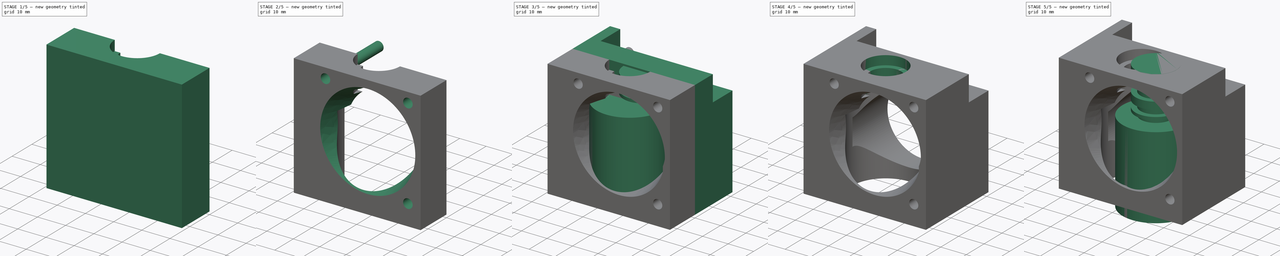
[diagram: build sequence overview — one tinted view per stage of 5, left to right]
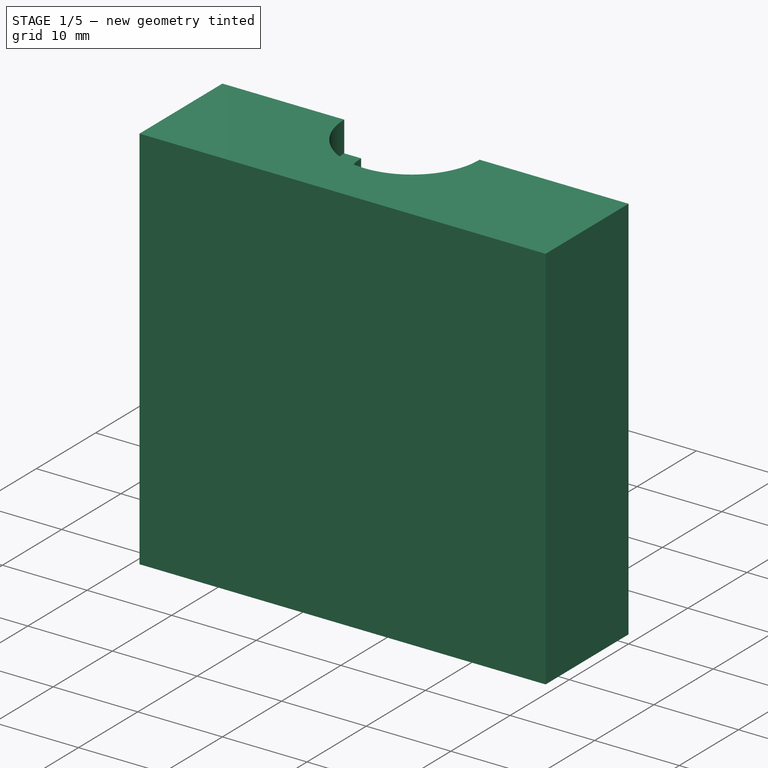
[diagram: stage 1 of 5 — iso view after this stage's code; geometry added in this stage tinted green]
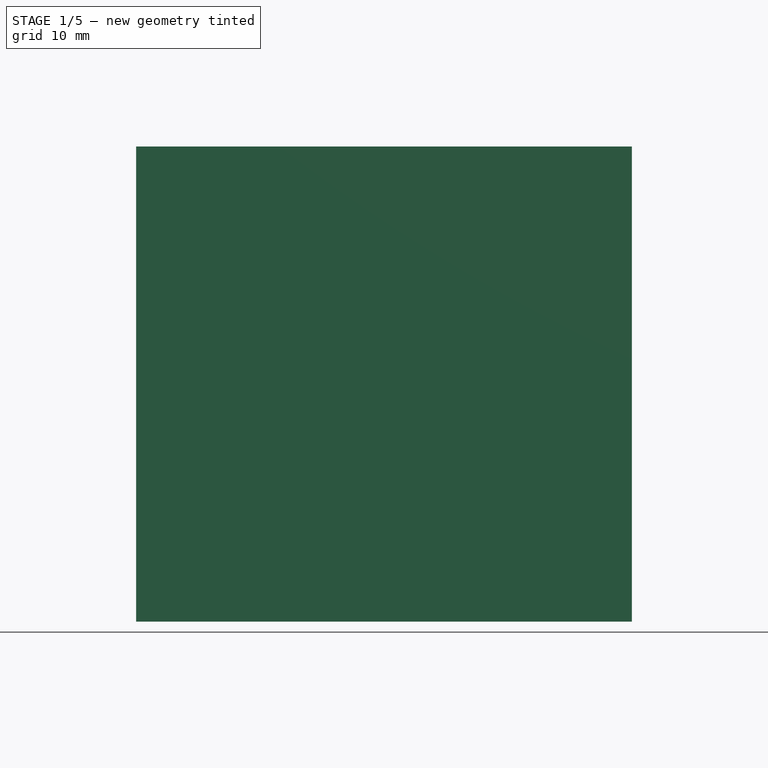
[diagram: stage 1 of 5 — front view after this stage's code; geometry added in this stage tinted green]
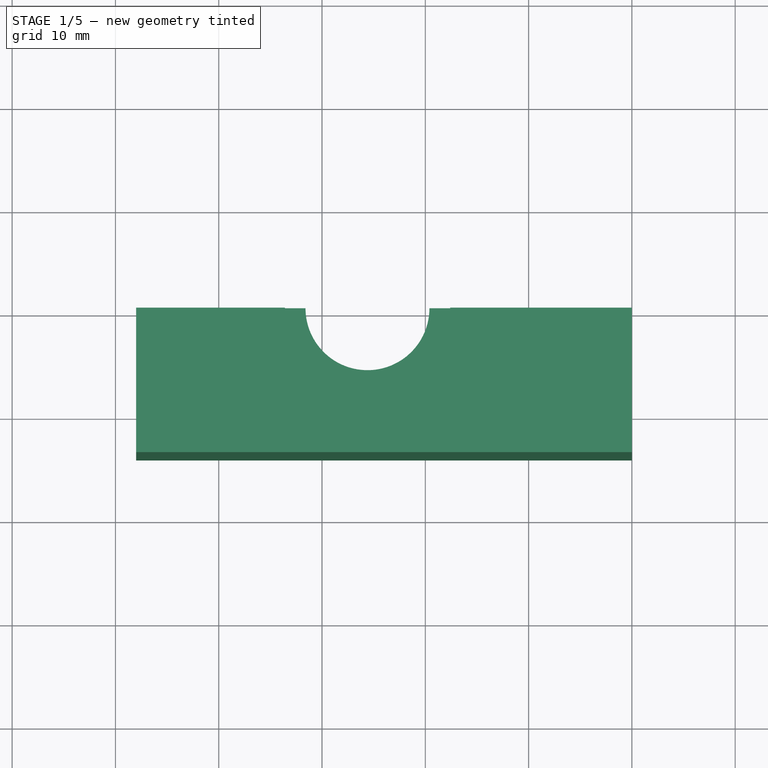
[diagram: stage 1 of 5 — top view after this stage's code; geometry added in this stage tinted green]
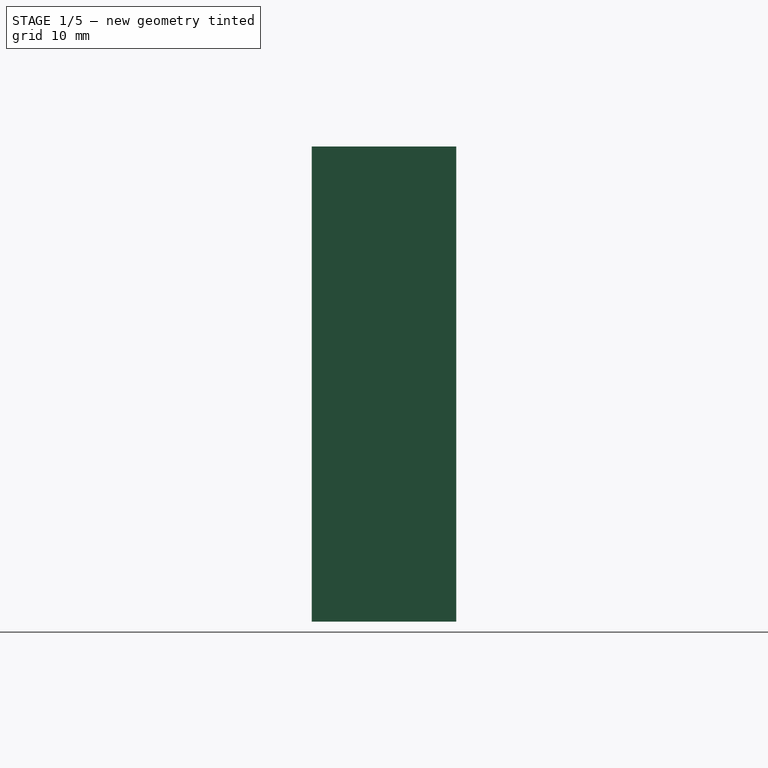
[diagram: stage 1 of 5 — right view after this stage's code; geometry added in this stage tinted green]
FCSTD DOCUMENT  (FreeCAD 0.15R4630 (Git))
Label: ChineseHotEndMount
License: CC-BY 3.0
LicenseURL: http://creativecommons.org/licenses/by/3.0/
objects: Part::Cylinder×22, Part::Cut×8, Part::MultiFuse×4, Part::Box×3, Sketcher::SketchObject×2, App::DocumentObjectGroup×1, Part::Loft×1
note: 40 computed .brp shape members not serialized (recipe doc carries the construction recipe); baked Part::Feature solids carry a one-line shape summary decoded from their .brp

FEATURE [Part::Box] Box002  label="Cube001"
  Height = 46
  Length = 48
  Placement = pos=(-28,-14,-4) rot=(0,0,1;0rad)
  Width = 14
FEATURE [Part::Cylinder] Cylinder023
  Angle = 360
  Height = 32
  Radius = 13
FEATURE [Part::Cylinder] Cylinder024  label="CylinderThroat003"
  Angle = 360
  Height = 18
  Placement = pos=(0,0,32) rot=(0,0,1;0rad)
  Radius = 6
FEATURE [Part::Cylinder] Cylinder025  label="Cylinder036"
  Angle = 360
  Height = 3.63
  Placement = pos=(0,0,46.4) rot=(0,0,1;0rad)
  Radius = 8
FEATURE [Part::Cylinder] Cylinder026  label="Cylinder037"
  Angle = 360
  Height = 3.7
  Placement = pos=(0,0,37.6) rot=(0,0,1;0rad)
  Radius = 8
FEATURE [Part::Cylinder] Cylinder027  label="Cylinder038"
  Angle = 360
  Height = 1.2
  Placement = pos=(0,0,33.8) rot=(0,0,1;0rad)
  Radius = 8
FEATURE [Part::MultiFuse] Fusion004
  Placement = pos=(-5.6,0,-8) rot=(0,0,1;0rad)
  Shapes = -> [Cylinder023,Cylinder024,Cylinder025,Cylinder026,Cylinder027]
FEATURE [Part::Cut] Cut006
  Base = -> Box002
  Tool = -> Fusion004
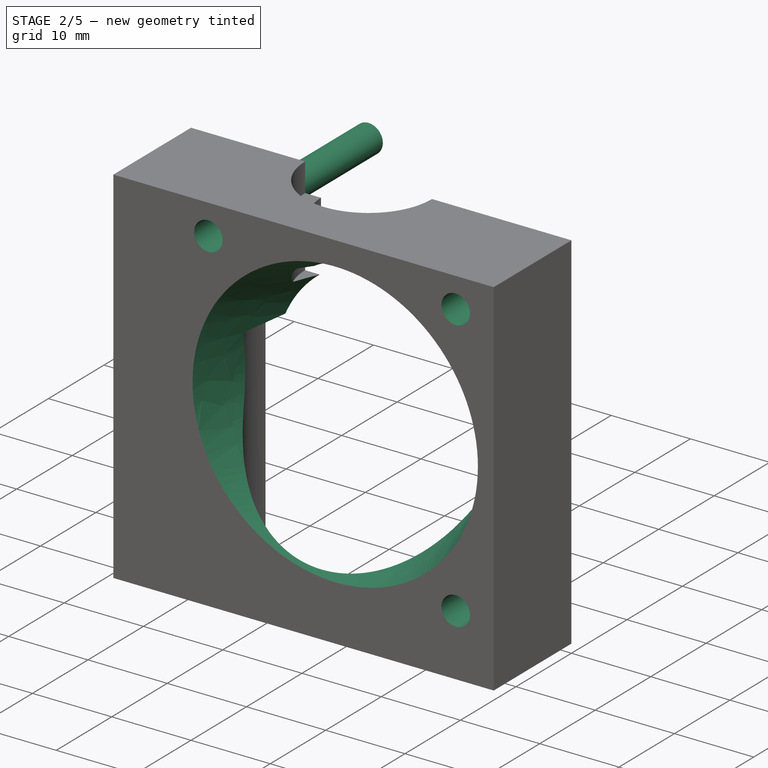
[diagram: stage 2 of 5 — iso view after this stage's code; geometry added in this stage tinted green]
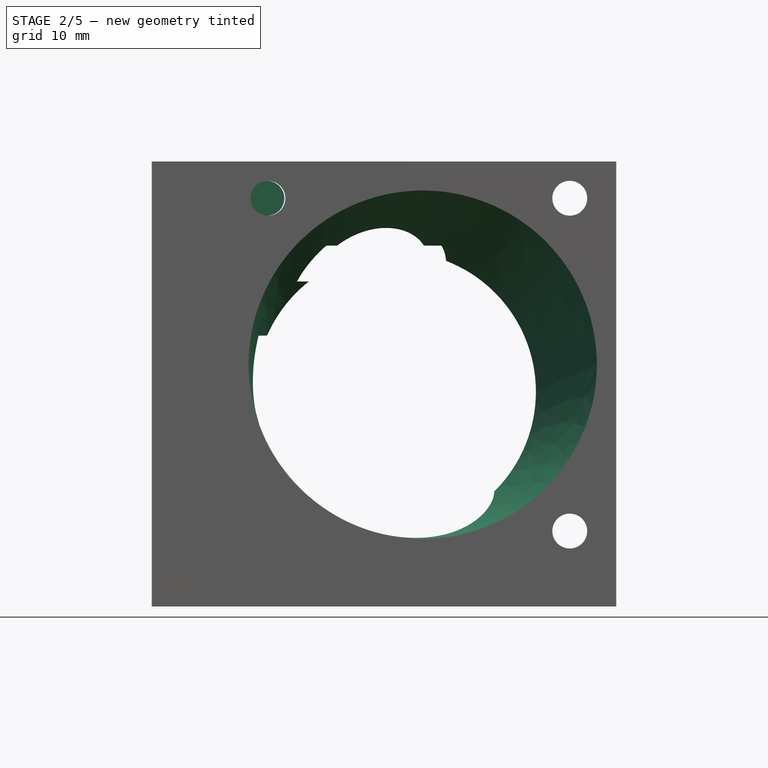
[diagram: stage 2 of 5 — front view after this stage's code; geometry added in this stage tinted green]
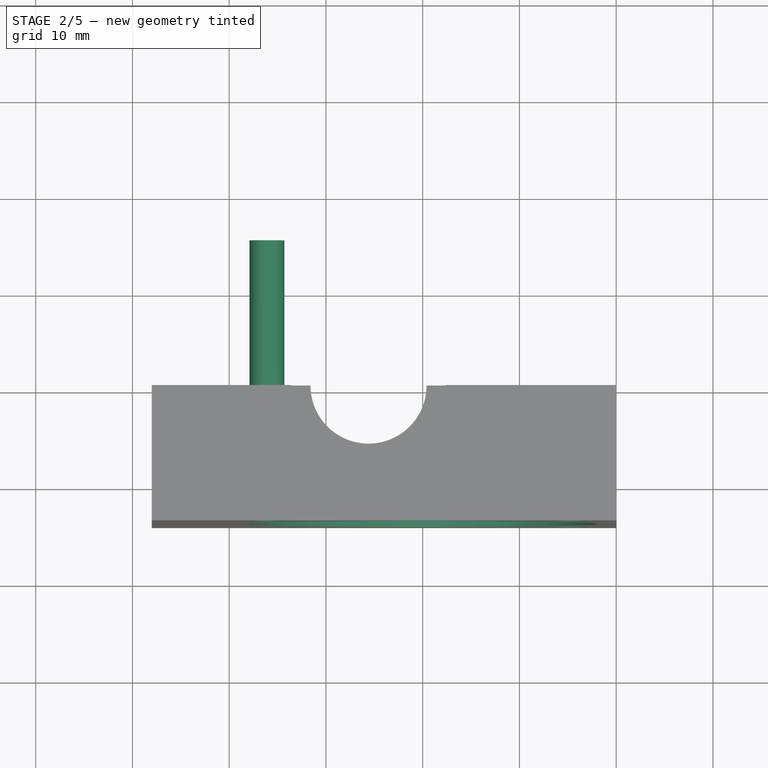
[diagram: stage 2 of 5 — top view after this stage's code; geometry added in this stage tinted green]
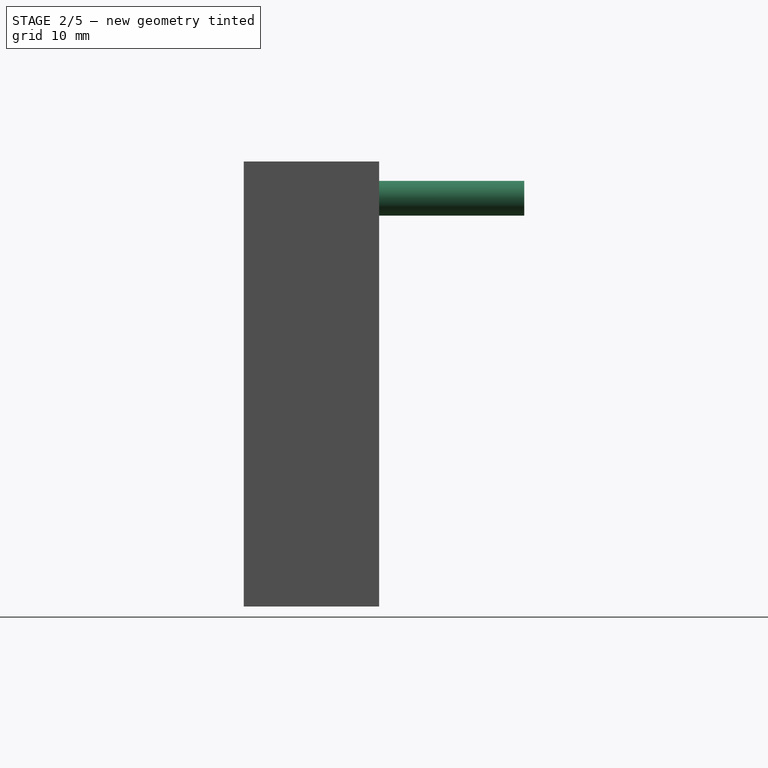
[diagram: stage 2 of 5 — right view after this stage's code; geometry added in this stage tinted green]
FEATURE [Part::Cylinder] Cylinder012  label="ScrewHole3mm"
  Angle = 360
  Height = 21
  Placement = pos=(-16.1,15,38.2) rot=(1,0,0;1.5708rad)
  Radius = 1.8
FEATURE [Part::Cylinder] Cylinder020  label="Fan mount"
  Angle = 360
  Height = 30
  Placement = pos=(15.2,4,17.2) rot=(1,0,0;1.5708rad)
  Radius = 1.8
FEATURE [Part::Cylinder] Cylinder021  label="Fan mount001"
  Angle = 360
  Height = 30
  Placement = pos=(-16,5,17.2) rot=(1,0,0;1.5708rad)
  Radius = 1.8
FEATURE [Part::Cylinder] Cylinder022  label="Fan mount002"
  Angle = 360
  Height = 30
  Placement = pos=(15.2,5,-17.2) rot=(1,0,0;1.5708rad)
  Radius = 1.8
FEATURE [Sketcher::SketchObject] Sketch001
  Placement = pos=(0,0,20) rot=(0,0,1;0rad)
  sketch-geometry (1):
    g0: Circle CenterX=0 CenterY=0 CenterZ=0 NormalX=0 NormalY=0 NormalZ=1 Radius=18
  constraints (2):
    c: Coincident(g0,g-1)
    c: Radius(g0) = 18
FEATURE [Sketcher::SketchObject] Sketch
  Placement = pos=(-4,-4,0) rot=(0,0,1;0rad)
  sketch-geometry (1):
    g0: Circle CenterX=0 CenterY=0 CenterZ=0 NormalX=0 NormalY=0 NormalZ=1 Radius=13
  constraints (2):
    c: Coincident(g0,g-1)
    c: Radius(g0) = 13
FEATURE [Part::Loft] Loft
  Closed = false
  Placement = pos=(0,0,0) rot=(1,0,0;1.5708rad)
  Ruled = false
  Sections = -> [Sketch001,Sketch]
  Solid = true
FEATURE [Part::MultiFuse] Fusion003
  Placement = pos=(0,6,21) rot=(0,0,1;0rad)
  Shapes = -> [Cylinder021,Cylinder022,Cylinder020,Loft]
FEATURE [Part::Cut] Cut007
  Base = -> Cut006
  Tool = -> Fusion003
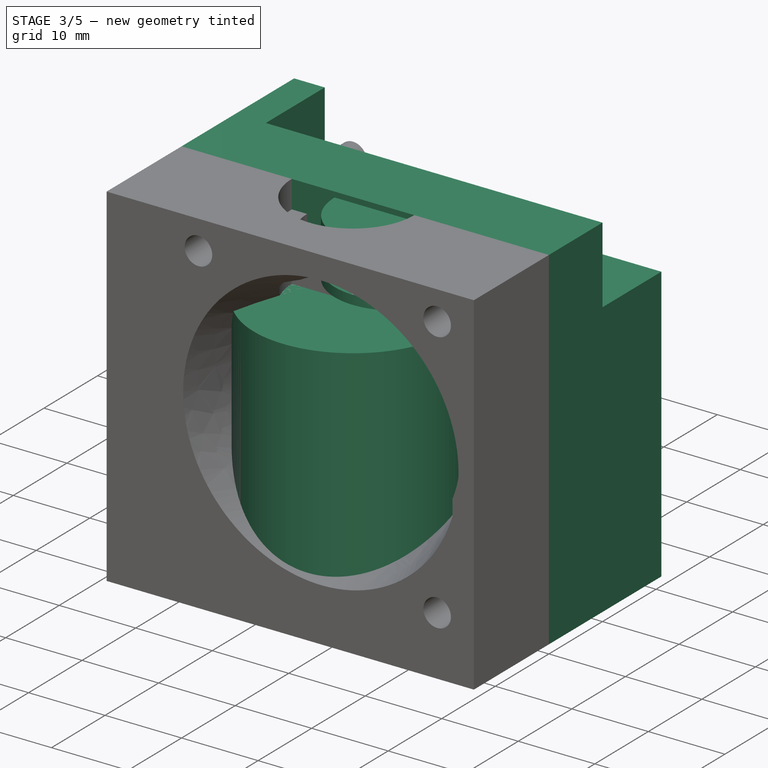
[diagram: stage 3 of 5 — iso view after this stage's code; geometry added in this stage tinted green]
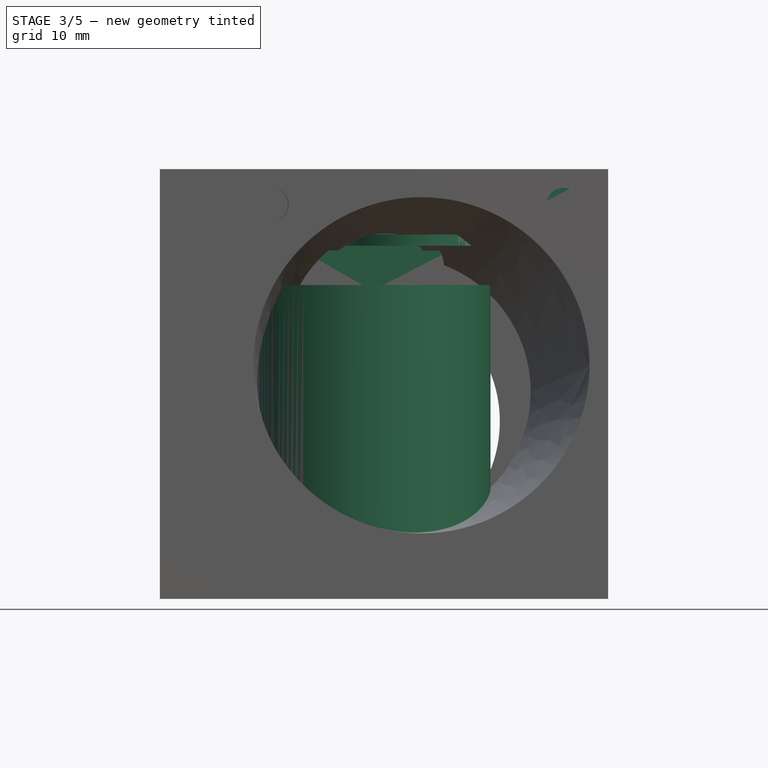
[diagram: stage 3 of 5 — front view after this stage's code; geometry added in this stage tinted green]
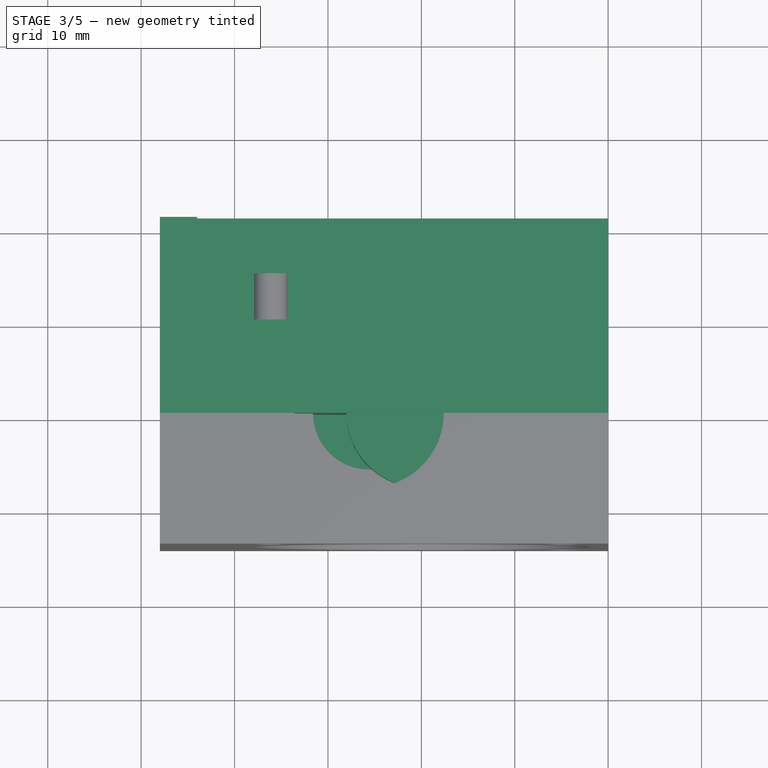
[diagram: stage 3 of 5 — top view after this stage's code; geometry added in this stage tinted green]
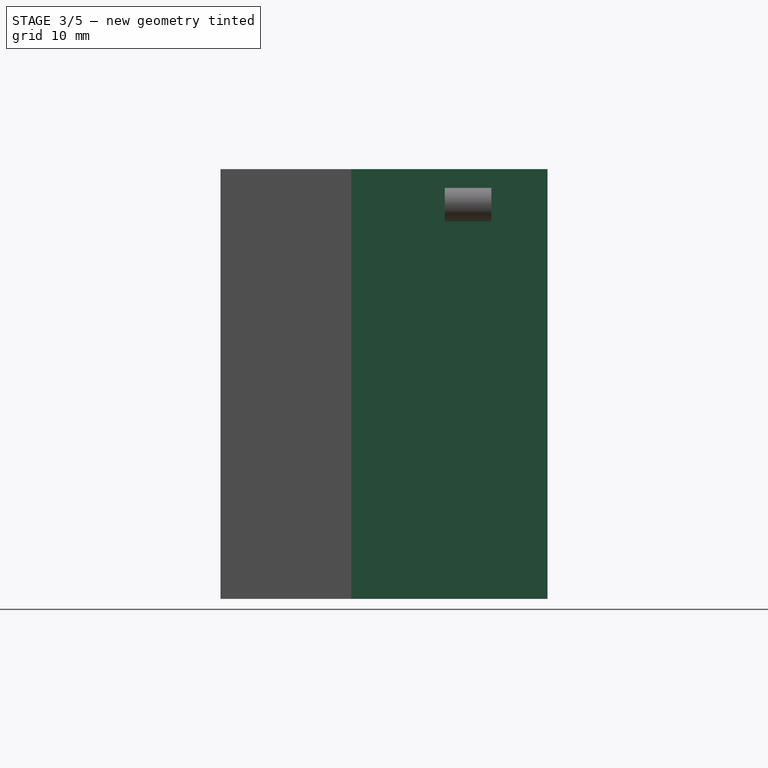
[diagram: stage 3 of 5 — right view after this stage's code; geometry added in this stage tinted green]
FEATURE [Part::Box] Box  label="Base Cube"
  Height = 46
  Length = 48
  Placement = pos=(-28,0,-4) rot=(0,0,1;0rad)
  Width = 21
FEATURE [Part::Cylinder] Cylinder003  label="Cylinder002"
  Angle = 360
  Height = 3.7
  Placement = pos=(0,0,37.6) rot=(0,0,1;0rad)
  Radius = 8
FEATURE [Part::Cylinder] Cylinder004  label="Cylinder003"
  Angle = 360
  Height = 1.2
  Placement = pos=(0,0,33.8) rot=(0,0,1;0rad)
  Radius = 8
FEATURE [Part::Cylinder] Cylinder005  label="Cylinder004"
  Angle = 360
  Height = 25
  Placement = pos=(-5.6,25,15) rot=(1,0,0;1.5708rad)
  Radius = 14
FEATURE [Part::Box] Box001  label="Cube"
  Height = 10
  Length = 48
  Placement = pos=(-24,10,32) rot=(0,0,1;0rad)
  Width = 12
FEATURE [Part::Cut] Cut
  Base = -> Box
  Tool = -> Box001
FEATURE [Part::Cut] Cut001
  Base = -> Cut
  Tool = -> Cylinder005
FEATURE [Part::Cylinder] Cylinder011  label="Cylinder031"
  Angle = 360
  Height = 32
  Placement = pos=(-5.6,0,-2.4) rot=(0,0,1;0rad)
  Radius = 13
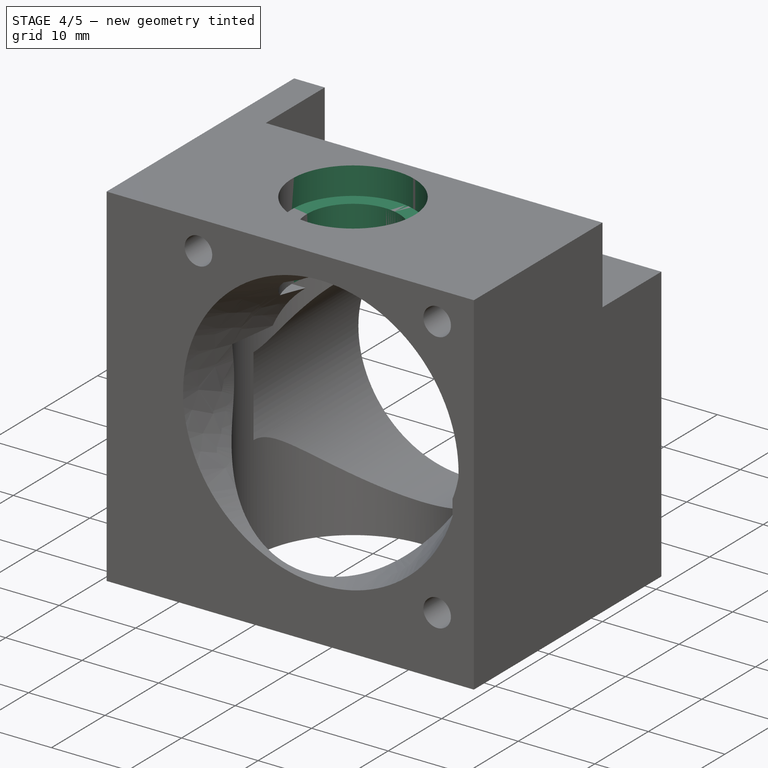
[diagram: stage 4 of 5 — iso view after this stage's code; geometry added in this stage tinted green]
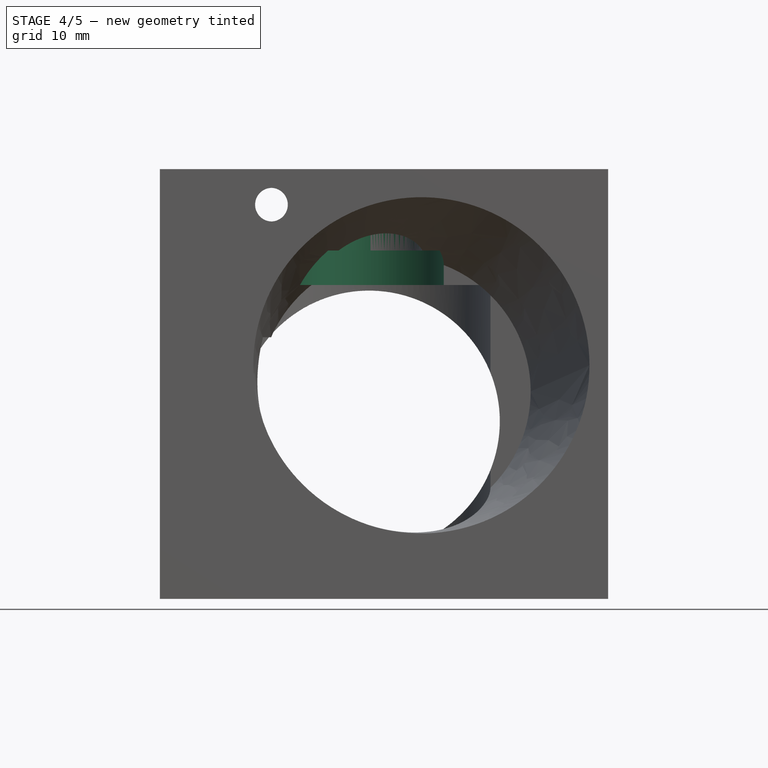
[diagram: stage 4 of 5 — front view after this stage's code; geometry added in this stage tinted green]
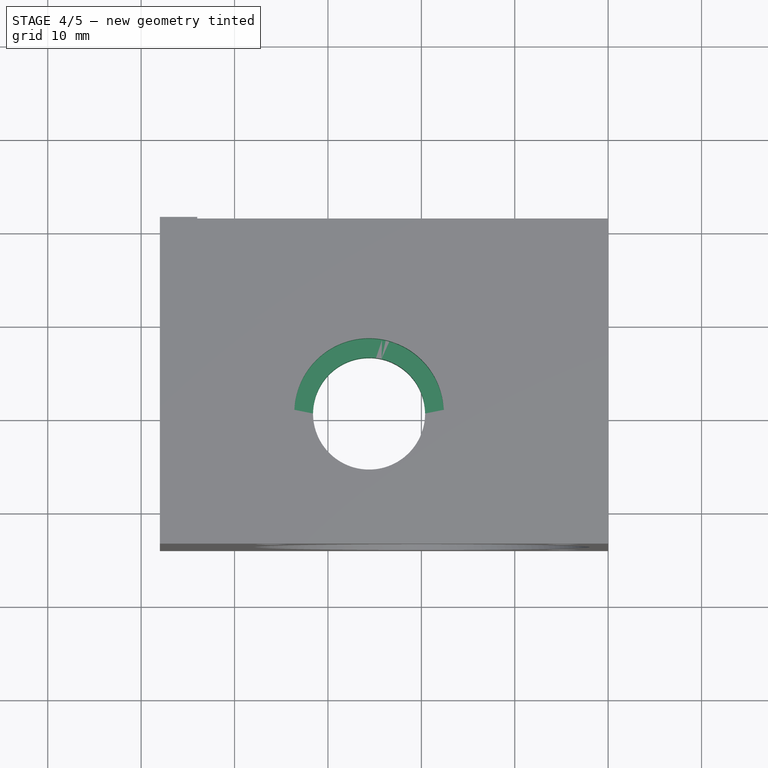
[diagram: stage 4 of 5 — top view after this stage's code; geometry added in this stage tinted green]
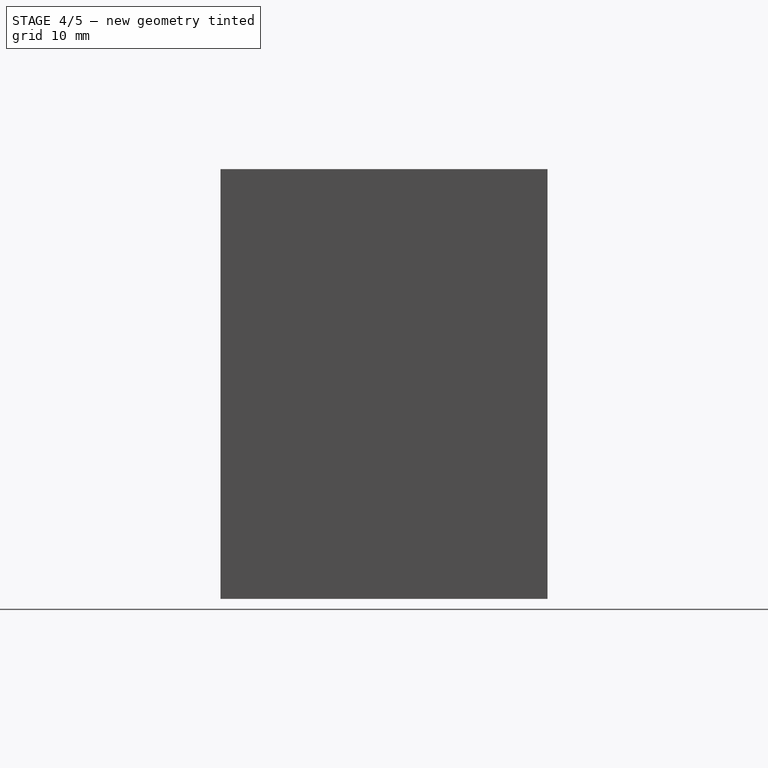
[diagram: stage 4 of 5 — right view after this stage's code; geometry added in this stage tinted green]
FEATURE [Part::Cylinder] Cylinder
  Angle = 360
  Height = 32
  Radius = 13
FEATURE [Part::Cylinder] Cylinder001  label="CylinderThroat"
  Angle = 360
  Height = 18
  Placement = pos=(0,0,32) rot=(0,0,1;0rad)
  Radius = 6
FEATURE [Part::Cylinder] Cylinder002  label="Cylinder001"
  Angle = 360
  Height = 3.63
  Placement = pos=(0,0,46.4) rot=(0,0,1;0rad)
  Radius = 8
FEATURE [Part::MultiFuse] Fusion
  Placement = pos=(-5.6,0,-8) rot=(0,0,1;0rad)
  Shapes = -> [Cylinder,Cylinder001,Cylinder002,Cylinder003,Cylinder004]
FEATURE [Part::Cut] Cut002
  Base = -> Cut001
  Tool = -> Fusion
FEATURE [App::DocumentObjectGroup] Group
  Group = -> [Cylinder,Cylinder001,Cylinder002,Cylinder003,Cylinder004,Cylinder011]
FEATURE [Part::Cut] Cut003
  Base = -> Cut002
  Tool = -> Cylinder011
FEATURE [Part::Cut] Cut004
  Base = -> Cut003
  Tool = -> Cylinder012
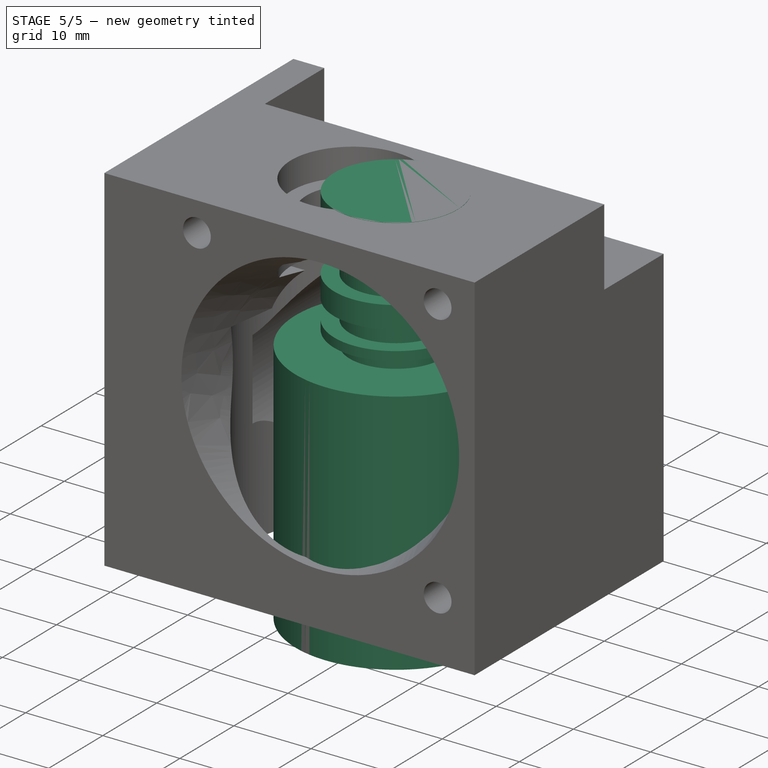
[diagram: stage 5 of 5 — iso view after this stage's code; geometry added in this stage tinted green]
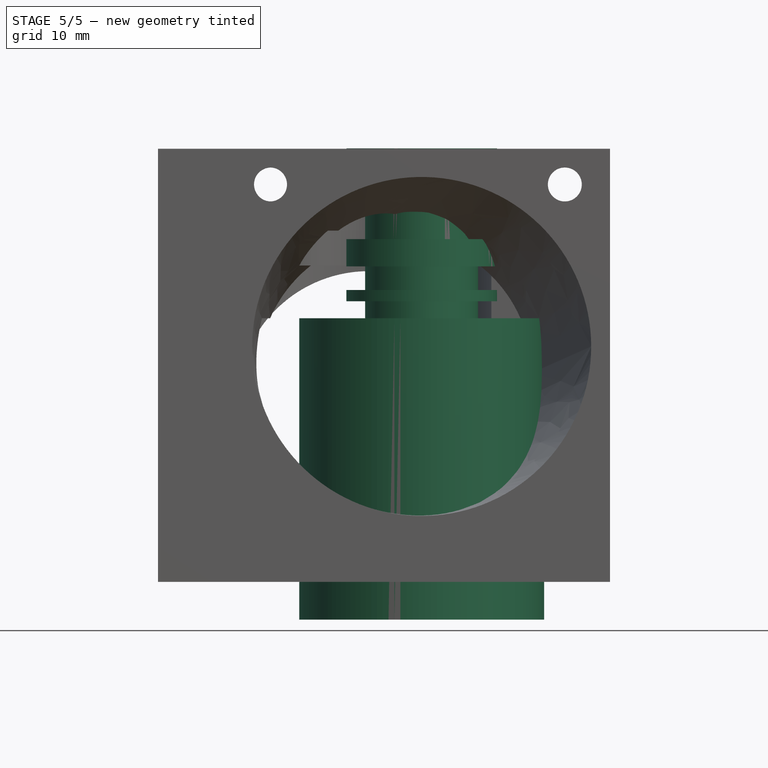
[diagram: stage 5 of 5 — front view after this stage's code; geometry added in this stage tinted green]
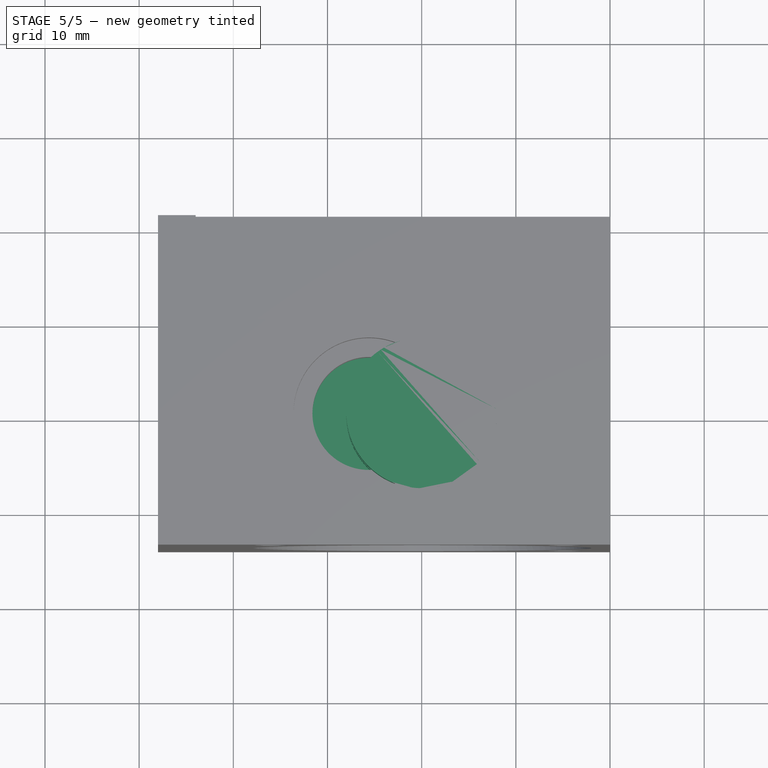
[diagram: stage 5 of 5 — top view after this stage's code; geometry added in this stage tinted green]
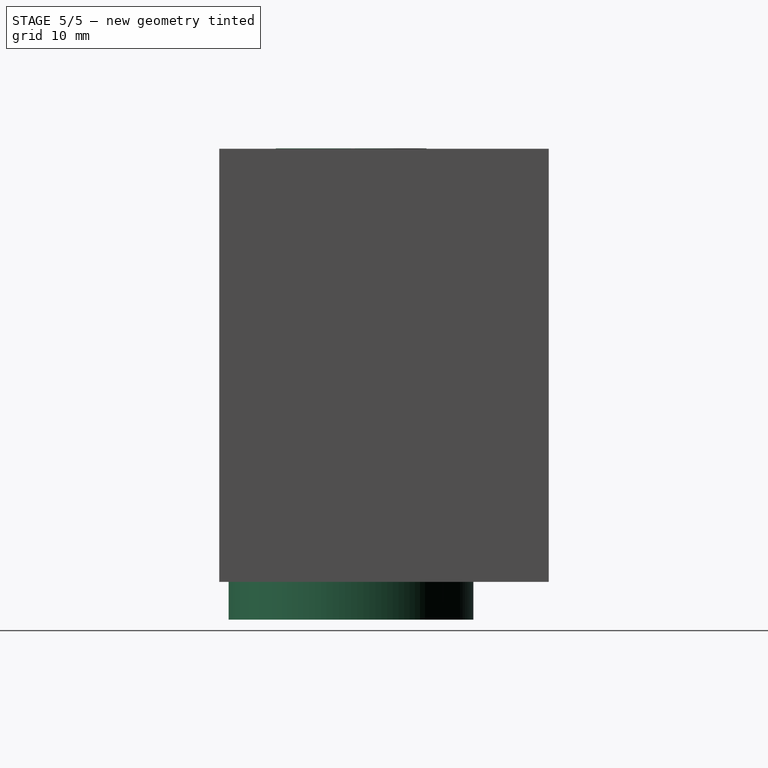
[diagram: stage 5 of 5 — right view after this stage's code; geometry added in this stage tinted green]
FEATURE [Part::Cylinder] Cylinder006  label="Cylinder028"
  Angle = 360
  Height = 1.2
  Placement = pos=(0,0,33.8) rot=(0,0,1;0rad)
  Radius = 8
FEATURE [Part::Cylinder] Cylinder007  label="Cylinder029"
  Angle = 360
  Height = 2.9
  Placement = pos=(0,0,37.5) rot=(0,0,1;0rad)
  Radius = 8
FEATURE [Part::Cylinder] Cylinder008  label="Cylinder030"
  Angle = 360
  Height = 3.63
  Placement = pos=(0,0,46.4) rot=(0,0,1;0rad)
  Radius = 8
FEATURE [Part::Cylinder] Cylinder009  label="CylinderThroat001"
  Angle = 360
  Height = 18
  Placement = pos=(0,0,32) rot=(0,0,1;0rad)
  Radius = 6
FEATURE [Part::Cylinder] Cylinder010
  Angle = 360
  Height = 32
  Radius = 13
FEATURE [Part::MultiFuse] Fusion001
  Placement = pos=(0,0,-8) rot=(0,0,1;0rad)
  Shapes = -> [Cylinder010,Cylinder009,Cylinder008,Cylinder007,Cylinder006]
FEATURE [Part::Cylinder] Cylinder013  label="ScrewHole3mm001"
  Angle = 360
  Height = 20
  Placement = pos=(15.2,15,38.2) rot=(1,0,0;1.5708rad)
  Radius = 1.8
FEATURE [Part::Cut] Cut005
  Base = -> Cut004
  Tool = -> Cylinder013
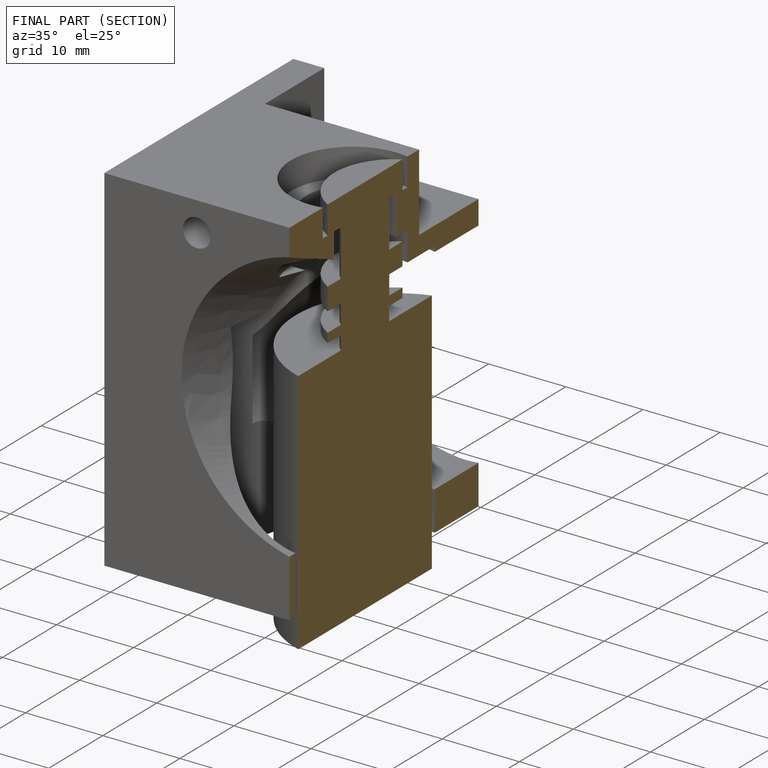
[diagram: finished part — half-section view (interior)]
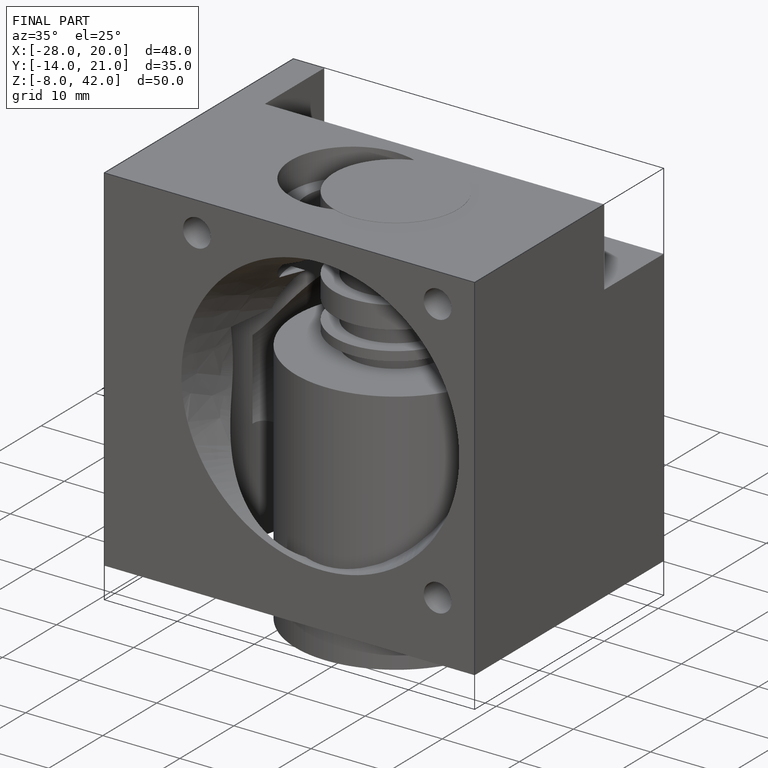
[diagram: finished part — iso view with bounding-box wireframe]
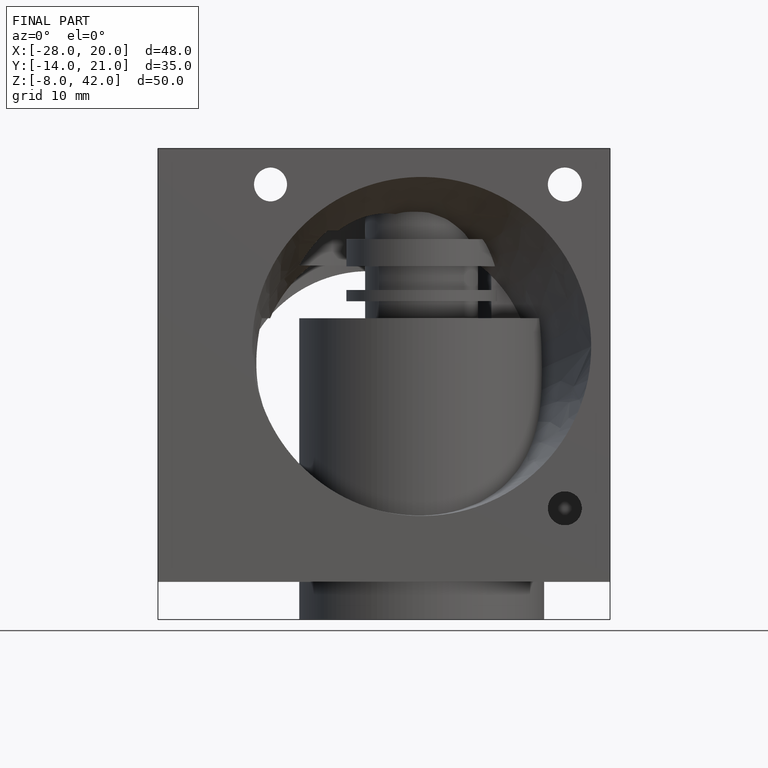
[diagram: finished part — front view with bounding-box wireframe]
